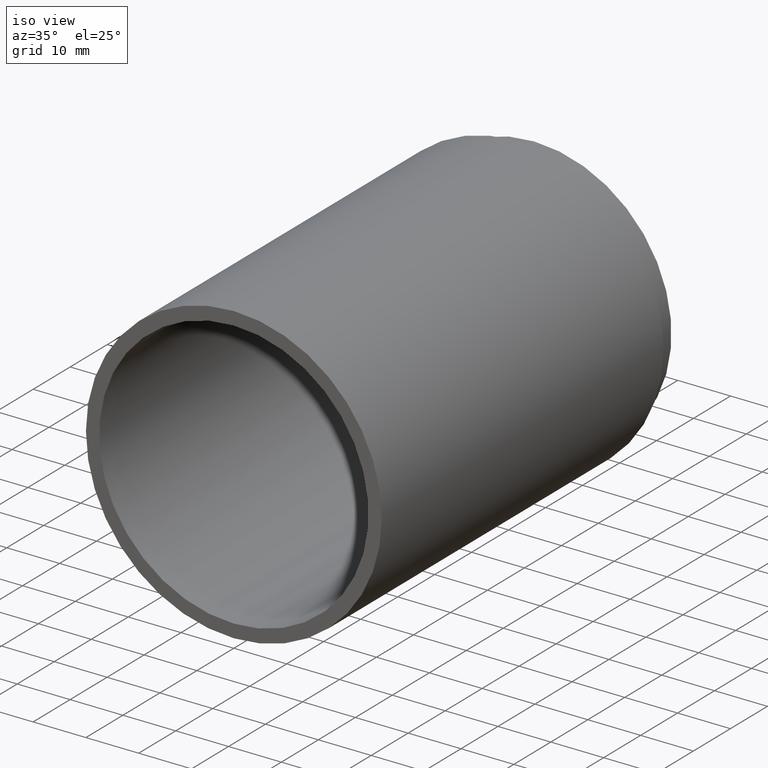
[diagram: clean part render]
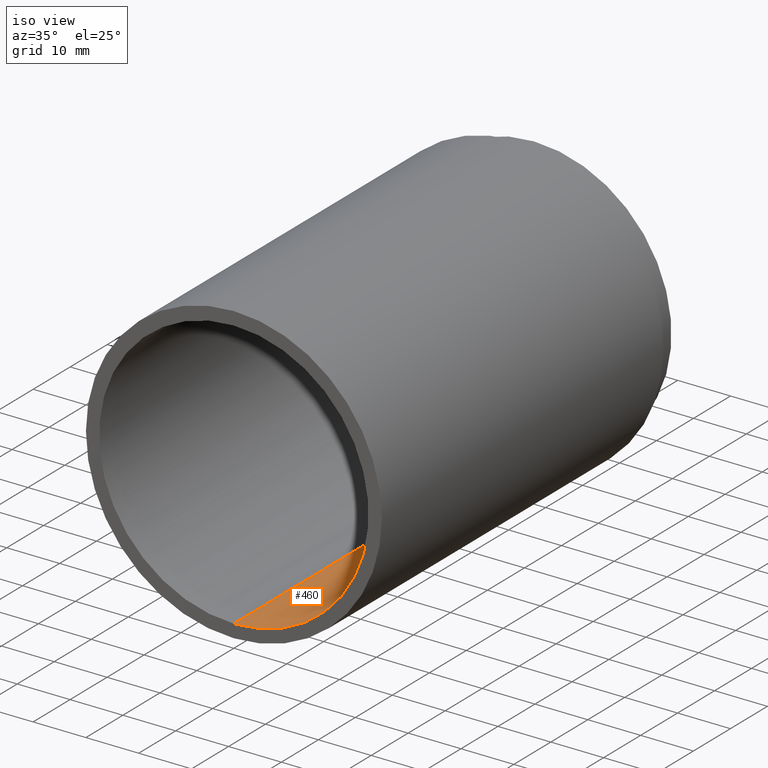
[diagram: same view with one face highlighted and labeled with its STEP entity id]
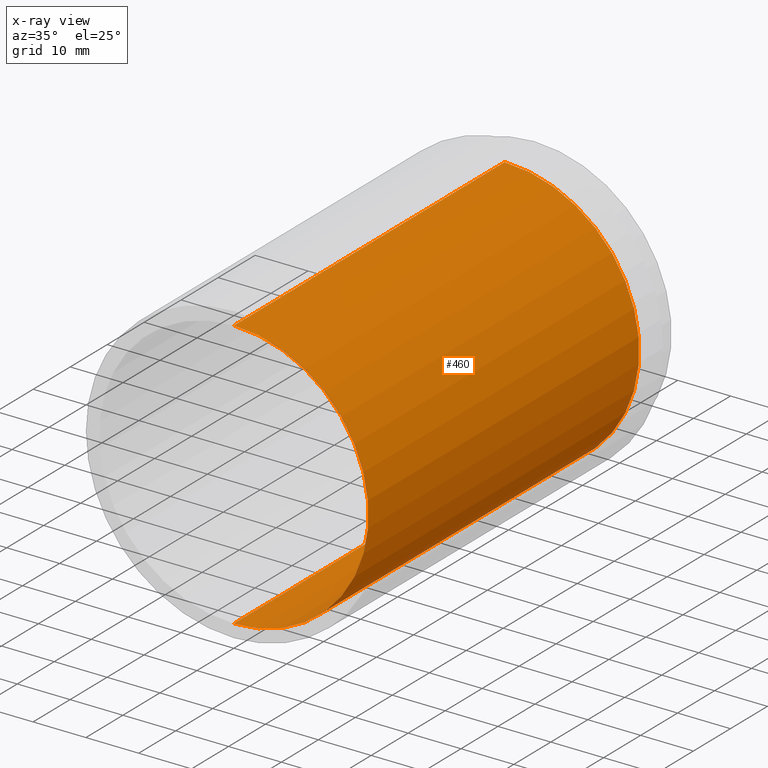
[diagram: x-ray of the same camera — body ghosted, the highlighted face saturated]
A machine part, iso view. The second image highlights one B-rep face of the part: STEP entity #460.
The next image is the same camera in x-ray: the body ghosted, the highlighted face saturated — about 1% of this face is hidden behind the body in this view.
In plain terms, the highlighted cylindrical surface (partial cylindrical patch) has radius 25.5 mm, axis along (-0, 1, -0).
Its self-contained STEP definition (entity closure, byte-faithful):
#10 = EDGE_CURVE ( 'NONE', #289, #140, #236, .T. ) ;
#11 = DIRECTION ( 'NONE',  ( 0.0000000000000000000, 0.0000000000000000000, 1.000000000000000000 ) ) ;
#53 = DIRECTION ( 'NONE',  ( 0.0000000000000000000, 0.0000000000000000000, 1.000000000000000000 ) ) ;
#58 = CYLINDRICAL_SURFACE ( 'NONE', #166, 25.50000000000001800 ) ;
#91 = LINE ( 'NONE', #411, #560 ) ;
#93 = CARTESIAN_POINT ( 'NONE',  ( 0.0000000000000000000, 73.19999999999998900, 0.0000000000000000000 ) ) ;
#100 = DIRECTION ( 'NONE',  ( -0.0000000000000000000, 1.000000000000000000, -0.0000000000000000000 ) ) ;
#110 = DIRECTION ( 'NONE',  ( 0.0000000000000000000, 0.0000000000000000000, 1.000000000000000000 ) ) ;
#118 = AXIS2_PLACEMENT_3D ( 'NONE', #93, #584, #53 ) ;
#140 = VERTEX_POINT ( 'NONE', #516 ) ;
#154 = EDGE_CURVE ( 'NONE', #140, #469, #618, .T. ) ;
#166 = AXIS2_PLACEMENT_3D ( 'NONE', #208, #100, #11 ) ;
#208 = CARTESIAN_POINT ( 'NONE',  ( 0.0000000000000000000, 161.3761669434274500, 0.0000000000000000000 ) ) ;
#236 = CIRCLE ( 'NONE', #506, 25.50000000000001800 ) ;
#269 = CARTESIAN_POINT ( 'NONE',  ( 0.0000000000000000000, -2.775557561562891400E-014, 0.0000000000000000000 ) ) ;
#279 = ORIENTED_EDGE ( 'NONE', *, *, #557, .T. ) ;
#289 = VERTEX_POINT ( 'NONE', #622 ) ;
#315 = VECTOR ( 'NONE', #509, 1000.000000000000000 ) ;
#374 = EDGE_CURVE ( 'NONE', #462, #469, #453, .T. ) ;
#375 = FACE_OUTER_BOUND ( 'NONE', #550, .T. ) ;
#403 = ORIENTED_EDGE ( 'NONE', *, *, #374, .T. ) ;
#411 = CARTESIAN_POINT ( 'NONE',  ( 0.0000000000000000000, 161.3761669434274500, 25.50000000000001800 ) ) ;
#453 = CIRCLE ( 'NONE', #118, 25.50000000000001800 ) ;
#460 = ADVANCED_FACE ( 'NONE', ( #375 ), #58, .F. ) ;
#462 = VERTEX_POINT ( 'NONE', #541 ) ;
#469 = VERTEX_POINT ( 'NONE', #539 ) ;
#500 = DIRECTION ( 'NONE',  ( -0.0000000000000000000, 1.000000000000000000, -0.0000000000000000000 ) ) ;
#506 = AXIS2_PLACEMENT_3D ( 'NONE', #269, #500, #110 ) ;
#509 = DIRECTION ( 'NONE',  ( -0.0000000000000000000, 1.000000000000000000, -0.0000000000000000000 ) ) ;
#516 = CARTESIAN_POINT ( 'NONE',  ( 3.122849337825753000E-015, -2.775557561562891400E-014, -25.50000000000001800 ) ) ;
#531 = DIRECTION ( 'NONE',  ( -0.0000000000000000000, 1.000000000000000000, -0.0000000000000000000 ) ) ;
#539 = CARTESIAN_POINT ( 'NONE',  ( 3.122849337825753000E-015, 73.19999999999998900, -25.50000000000001800 ) ) ;
#541 = CARTESIAN_POINT ( 'NONE',  ( 0.0000000000000000000, 73.19999999999998900, 25.50000000000001800 ) ) ;
#550 = EDGE_LOOP ( 'NONE', ( #564, #595, #279, #403 ) ) ;
#557 = EDGE_CURVE ( 'NONE', #289, #462, #91, .T. ) ;
#560 = VECTOR ( 'NONE', #531, 1000.000000000000000 ) ;
#563 = CARTESIAN_POINT ( 'NONE',  ( 3.122849337825753000E-015, 161.3761669434274500, -25.50000000000001800 ) ) ;
#564 = ORIENTED_EDGE ( 'NONE', *, *, #154, .F. ) ;
#584 = DIRECTION ( 'NONE',  ( -0.0000000000000000000, 1.000000000000000000, -0.0000000000000000000 ) ) ;
#595 = ORIENTED_EDGE ( 'NONE', *, *, #10, .F. ) ;
#618 = LINE ( 'NONE', #563, #315 ) ;
#622 = CARTESIAN_POINT ( 'NONE',  ( 0.0000000000000000000, -2.775557561562891400E-014, 25.50000000000001800 ) ) ;